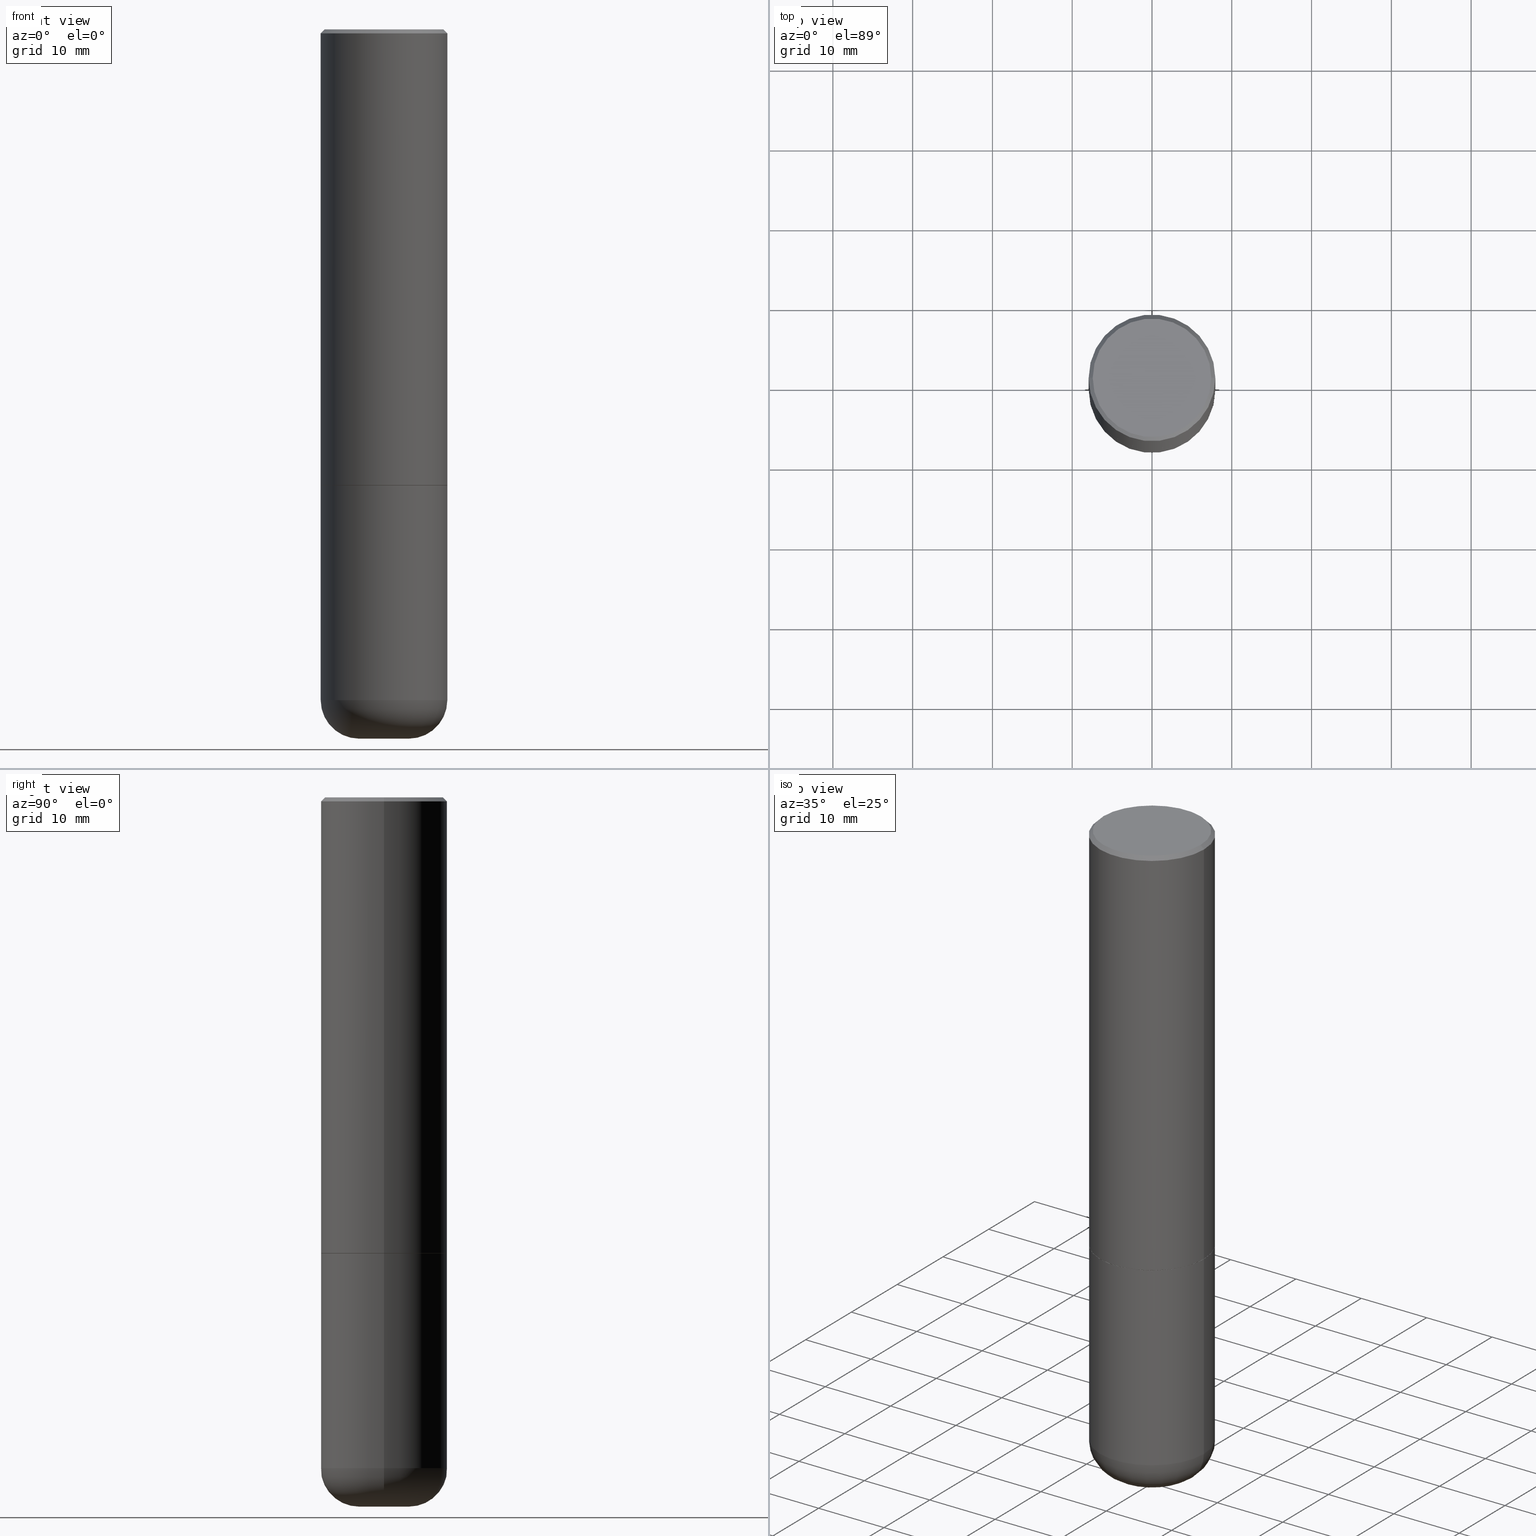
[diagram: canonical four-view strip — front | top / right | iso, engineering-drawing reading convention]
A machine part, canonical four-view strip (front | top / right | iso — engineering-drawing reading convention). The complete STEP part file that produces these views, byte-faithful:
ISO-10303-21;
HEADER;
FILE_DESCRIPTION (( 'STEP AP203' ),
    '1' );
FILE_NAME ('38553.STEP',
    '2024-03-03T04:38:35',
    ( '' ),
    ( '' ),
    'SwSTEP 2.0',
    'SolidWorks 2023',
    '' );
FILE_SCHEMA (( 'CONFIG_CONTROL_DESIGN' ));
ENDSEC;

DATA;
#1 = ADVANCED_FACE ( 'NONE', ( #108 ), #404, .T. ) ;
#2 = DIRECTION ( 'NONE',  ( -2.445468806185136877E-29, 3.491481338843145188E-15, 1.000000000000000000 ) ) ;
#3 = DIRECTION ( 'NONE',  ( 1.000000000000000000, -6.982962677686266711E-15, 4.878659607425508343E-29 ) ) ;
#4 = ORIENTED_EDGE ( 'NONE', *, *, #127, .F. ) ;
#5 = CIRCLE ( 'NONE', #359, 0.2924999999999997047 ) ;
#6 = CYLINDRICAL_SURFACE ( 'NONE', #142, 0.3125000000000000000 ) ;
#7 = ORIENTED_EDGE ( 'NONE', *, *, #146, .F. ) ;
#8 = APPROVAL_DATE_TIME ( #337, #165 ) ;
#9 = EDGE_LOOP ( 'NONE', ( #299, #68, #97, #269 ) ) ;
#10 = CARTESIAN_POINT ( 'NONE',  ( -0.1225000000000000255, -1.068638838026468806E-14, -3.310000000000000053 ) ) ;
#11 = ORIENTED_EDGE ( 'NONE', *, *, #335, .F. ) ;
#12 = PERSON_AND_ORGANIZATION ( #389, #206 ) ;
#13 = CC_DESIGN_DATE_AND_TIME_ASSIGNMENT ( #174, #399, ( #251 ) ) ;
#14 = ORIENTED_EDGE ( 'NONE', *, *, #303, .F. ) ;
#15 = ORIENTED_EDGE ( 'NONE', *, *, #239, .T. ) ;
#16 = CALENDAR_DATE ( 2024, 2, 3 ) ;
#17 = CARTESIAN_POINT ( 'NONE',  ( 8.559140821647976968E-29, -1.222018468595100934E-14, -3.500000000000000000 ) ) ;
#18 = CONICAL_SURFACE ( 'NONE', #414, 0.3124999999999998890, 0.7853981633974473908 ) ;
#19 = CARTESIAN_POINT ( 'NONE',  ( 0.2924999999999997047, -2.110215457714318353E-15, 1.323238871931272789E-16 ) ) ;
#20 = ADVANCED_FACE ( 'NONE', ( #51 ), #373, .T. ) ;
#21 = DIRECTION ( 'NONE',  ( 1.000000000000000000, -6.982962677686269077E-15, 4.883557194083114022E-29 ) ) ;
#22 = DIMENSIONAL_EXPONENTS ( 1.000000000000000000, 0.000000000000000000, 0.000000000000000000, 0.000000000000000000, 0.000000000000000000, 0.000000000000000000, 0.000000000000000000 ) ;
#23 = SHAPE_DEFINITION_REPRESENTATION ( #194, #264 ) ;
#24 = DIRECTION ( 'NONE',  ( 1.000000000000000000, -6.982962677686266711E-15, 0.000000000000000000 ) ) ;
#25 = CARTESIAN_POINT ( 'NONE',  ( 0.3124999999999998890, -2.213735251080466123E-15, -0.02000000000000006981 ) ) ;
#26 = AXIS2_PLACEMENT_3D ( 'NONE', #17, #371, #110 ) ;
#27 = PRODUCT_RELATED_PRODUCT_CATEGORY ( 'detail', '', ( #362 ) ) ;
#28 = CIRCLE ( 'NONE', #283, 0.3125000000000000000 ) ;
#29 = DIRECTION ( 'NONE',  ( -2.445468806185136597E-29, 3.491481338843145583E-15, 1.000000000000000000 ) ) ;
#30 = DIRECTION ( 'NONE',  ( 1.000000000000000000, -6.982962677686266711E-15, 4.876176775795936353E-29 ) ) ;
#31 = APPROVAL ( #341, 'UNSPECIFIED' ) ;
#32 = DIRECTION ( 'NONE',  ( 2.445468806185136597E-29, -3.491481338843145583E-15, -1.000000000000000000 ) ) ;
#33 = EDGE_LOOP ( 'NONE', ( #289, #229, #257, #340 ) ) ;
#34 = AXIS2_PLACEMENT_3D ( 'NONE', #352, #184, #124 ) ;
#35 = EDGE_CURVE ( 'NONE', #100, #272, #333, .T. ) ;
#36 = TOROIDAL_SURFACE ( 'NONE', #243, 0.1225000000000000255, 0.1899999999999999467 ) ;
#37 = APPROVAL_PERSON_ORGANIZATION ( #70, #165, #334 ) ;
#38 = LINE ( 'NONE', #228, #332 ) ;
#39 = CARTESIAN_POINT ( 'NONE',  ( 4.890937612370289799E-31, -6.982962677686315028E-17, -0.02000000000000006981 ) ) ;
#40 = CARTESIAN_POINT ( 'NONE',  ( 8.559140821647976968E-29, -1.222018468595100934E-14, -3.500000000000000000 ) ) ;
#41 = CONICAL_SURFACE ( 'NONE', #313, 0.3114999999999999991, 0.7853981633975165577 ) ;
#42 = CC_DESIGN_APPROVAL ( #165, ( #251 ) ) ;
#43 = CARTESIAN_POINT ( 'NONE',  ( 0.3125000000000000000, -2.182175836776958347E-15, 1.523805242436230075E-29 ) ) ;
#44 = PERSON_AND_ORGANIZATION ( #389, #206 ) ;
#45 = ORIENTED_EDGE ( 'NONE', *, *, #117, .T. ) ;
#46 = PERSON_AND_ORGANIZATION ( #389, #206 ) ;
#47 = ORIENTED_EDGE ( 'NONE', *, *, #62, .T. ) ;
#48 = VECTOR ( 'NONE', #215, 39.37007874015748143 ) ;
#49 = ORIENTED_EDGE ( 'NONE', *, *, #117, .F. ) ;
#50 = LINE ( 'NONE', #106, #394 ) ;
#51 = FACE_OUTER_BOUND ( 'NONE', #9, .T. ) ;
#52 = CARTESIAN_POINT ( 'NONE',  ( 0.1225000000000000255, -1.241221615958737947E-14, -3.310000000000000053 ) ) ;
#53 = DATE_TIME_ROLE ( 'classification_date' ) ;
#54 = DIRECTION ( 'NONE',  ( 1.000000000000000000, -6.982962677686266711E-15, 0.000000000000000000 ) ) ;
#55 = CARTESIAN_POINT ( 'NONE',  ( 0.3114999999999999991, -1.003102588649634920E-14, -2.249999999999999556 ) ) ;
#56 = DIRECTION ( 'NONE',  ( -2.445468806185136597E-29, 3.491481338843145583E-15, 1.000000000000000000 ) ) ;
#57 = ADVANCED_FACE ( 'NONE', ( #134 ), #266, .F. ) ;
#58 = LINE ( 'NONE', #345, #153 ) ;
#59 = CIRCLE ( 'NONE', #353, 0.3125000000000000000 ) ;
#60 = DIRECTION ( 'NONE',  ( -2.445468806185136597E-29, 3.491481338843145583E-15, 1.000000000000000000 ) ) ;
#61 = DIRECTION ( 'NONE',  ( 1.000000000000000000, -6.982962677686269077E-15, 0.000000000000000000 ) ) ;
#62 = EDGE_CURVE ( 'NONE', #393, #311, #346, .T. ) ;
#63 = ORIENTED_EDGE ( 'NONE', *, *, #73, .T. ) ;
#64 = DIRECTION ( 'NONE',  ( -1.000000000000000000, 6.982962677686266711E-15, 0.000000000000000000 ) ) ;
#65 = AXIS2_PLACEMENT_3D ( 'NONE', #118, #86, #415 ) ;
#66 = CARTESIAN_POINT ( 'NONE',  ( 5.502304813916556222E-29, -7.855833012397076871E-15, -2.249999999999999556 ) ) ;
#67 = DIRECTION ( 'NONE',  ( 1.000000000000000000, -6.982962677686265922E-15, 0.000000000000000000 ) ) ;
#68 = ORIENTED_EDGE ( 'NONE', *, *, #105, .T. ) ;
#69 = CC_DESIGN_APPROVAL ( #300, ( #314 ) ) ;
#70 = PERSON_AND_ORGANIZATION ( #389, #206 ) ;
#71 = VERTEX_POINT ( 'NONE', #19 ) ;
#72 = APPLICATION_PROTOCOL_DEFINITION ( 'international standard', 'config_control_design', 1994, #169 ) ;
#73 = EDGE_CURVE ( 'NONE', #261, #111, #58, .T. ) ;
#74 = VERTEX_POINT ( 'NONE', #25 ) ;
#75 = DIRECTION ( 'NONE',  ( 0.000000000000000000, 0.000000000000000000, 1.000000000000000000 ) ) ;
#76 = EDGE_LOOP ( 'NONE', ( #208, #79 ) ) ;
#77 = CIRCLE ( 'NONE', #204, 0.3124999999999998890 ) ;
#78 = LOCAL_TIME ( 23, 38, 35.00000000000000000, #412 ) ;
#79 = ORIENTED_EDGE ( 'NONE', *, *, #270, .T. ) ;
#80 = APPROVAL_ROLE ( '' ) ;
#81 = LINE ( 'NONE', #316, #407 ) ;
#82 = DIRECTION ( 'NONE',  ( 2.438088387897960049E-29, -3.491481338843145188E-15, -1.000000000000000000 ) ) ;
#83 = CALENDAR_DATE ( 2024, 2, 3 ) ;
#84 = CARTESIAN_POINT ( 'NONE',  ( 0.3125000000000002220, -1.003451736783519379E-14, -2.248999999999999666 ) ) ;
#85 = DATE_AND_TIME ( #210, #78 ) ;
#86 = DIRECTION ( 'NONE',  ( -2.445468806185136597E-29, 3.491481338843145583E-15, 1.000000000000000000 ) ) ;
#87 = DIRECTION ( 'NONE',  ( 1.000000000000000000, -6.982962677686266711E-15, 4.876176775795936353E-29 ) ) ;
#88 = CARTESIAN_POINT ( 'NONE',  ( 0.3114999999999999991, -1.003102588649634920E-14, -2.249999999999999556 ) ) ;
#89 = AXIS2_PLACEMENT_3D ( 'NONE', #327, #220, #288 ) ;
#90 = LOCAL_TIME ( 23, 38, 35.00000000000000000, #198 ) ;
#91 = ADVANCED_FACE ( 'NONE', ( #321 ), #181, .T. ) ;
#92 = DIRECTION ( 'NONE',  ( 1.000000000000000000, -6.982962677686266711E-15, 0.000000000000000000 ) ) ;
#93 = VERTEX_POINT ( 'NONE', #343 ) ;
#94 = CARTESIAN_POINT ( 'NONE',  ( 0.000000000000000000, 0.000000000000000000, 0.000000000000000000 ) ) ;
#95 = CARTESIAN_POINT ( 'NONE',  ( 5.502304813916556222E-29, -7.855833012397076871E-15, -2.249999999999999556 ) ) ;
#96 = AXIS2_PLACEMENT_3D ( 'NONE', #413, #29, #246 ) ;
#97 = ORIENTED_EDGE ( 'NONE', *, *, #281, .T. ) ;
#98 = CC_DESIGN_PERSON_AND_ORGANIZATION_ASSIGNMENT ( #397, #162, ( #381 ) ) ;
#99 = CARTESIAN_POINT ( 'NONE',  ( 8.094501748472800969E-29, -1.155680323157081116E-14, -3.310000000000000053 ) ) ;
#100 = VERTEX_POINT ( 'NONE', #150 ) ;
#101 = CARTESIAN_POINT ( 'NONE',  ( -0.3114999999999999991, -5.637193936156142396E-15, -2.249999999999999556 ) ) ;
#102 = ORIENTED_EDGE ( 'NONE', *, *, #405, .F. ) ;
#103 = AXIS2_PLACEMENT_3D ( 'NONE', #175, #141, #196 ) ;
#104 = AXIS2_PLACEMENT_3D ( 'NONE', #390, #185, #292 ) ;
#105 = EDGE_CURVE ( 'NONE', #402, #107, #214, .T. ) ;
#106 = CARTESIAN_POINT ( 'NONE',  ( -0.3125000000000000000, 2.220446049250313081E-15, -1.537167215704658232E-29 ) ) ;
#107 = VERTEX_POINT ( 'NONE', #84 ) ;
#108 = FACE_OUTER_BOUND ( 'NONE', #140, .T. ) ;
#109 = CALENDAR_DATE ( 2024, 2, 3 ) ;
#110 = DIRECTION ( 'NONE',  ( -1.000000000000000000, 6.982962677686265922E-15, -4.876176775795935793E-29 ) ) ;
#111 = VERTEX_POINT ( 'NONE', #379 ) ;
#112 = CARTESIAN_POINT ( 'NONE',  ( 4.890937612370289799E-31, -6.982962677686315028E-17, -0.02000000000000006981 ) ) ;
#113 = DIRECTION ( 'NONE',  ( -0.7071067811865469066, 2.468850131082249961E-15, -0.7071067811865482389 ) ) ;
#114 = EDGE_CURVE ( 'NONE', #393, #402, #286, .T. ) ;
#115 = VECTOR ( 'NONE', #164, 39.37007874015748143 ) ;
#116 = CIRCLE ( 'NONE', #160, 0.3125000000000002220 ) ;
#117 = EDGE_CURVE ( 'NONE', #128, #93, #282, .T. ) ;
#118 = CARTESIAN_POINT ( 'NONE',  ( 5.502304813916556222E-29, -7.855833012397076871E-15, -2.249999999999999556 ) ) ;
#119 = DIRECTION ( 'NONE',  ( 0.7071067811865957564, -2.468850131082761932E-15, 0.7071067811864992780 ) ) ;
#120 = LINE ( 'NONE', #55, #339 ) ;
#121 = CARTESIAN_POINT ( 'NONE',  ( 4.890937612370289799E-31, -6.982962677686315028E-17, -0.02000000000000006981 ) ) ;
#122 = EDGE_LOOP ( 'NONE', ( #7, #336, #63, #139 ) ) ;
#123 = DIRECTION ( 'NONE',  ( 2.445468806185136597E-29, -3.491481338843145583E-15, -1.000000000000000000 ) ) ;
#124 = DIRECTION ( 'NONE',  ( 1.000000000000000000, -6.982962677686269077E-15, 0.000000000000000000 ) ) ;
#125 = CC_DESIGN_PERSON_AND_ORGANIZATION_ASSIGNMENT ( #241, #365, ( #362 ) ) ;
#126 = DIRECTION ( 'NONE',  ( -2.438088387897960049E-29, 3.491481338843145188E-15, 1.000000000000000000 ) ) ;
#127 = EDGE_CURVE ( 'NONE', #311, #107, #120, .T. ) ;
#128 = VERTEX_POINT ( 'NONE', #376 ) ;
#129 = AXIS2_PLACEMENT_3D ( 'NONE', #52, #351, #250 ) ;
#130 = APPROVAL_PERSON_ORGANIZATION ( #167, #31, #310 ) ;
#131 = MANIFOLD_SOLID_BREP ( 'Body-Move/Copy2[1]', #233 ) ;
#132 = CARTESIAN_POINT ( 'NONE',  ( 0.000000000000000000, 0.000000000000000000, 0.000000000000000000 ) ) ;
#133 = DIRECTION ( 'NONE',  ( -1.000000000000000000, 7.105427357600998703E-15, 0.000000000000000000 ) ) ;
#134 = FACE_OUTER_BOUND ( 'NONE', #76, .T. ) ;
#135 = EDGE_CURVE ( 'NONE', #74, #111, #366, .T. ) ;
#136 = DIRECTION ( 'NONE',  ( 7.105427357601001859E-15, 1.000000000000000000, -3.491481338843145583E-15 ) ) ;
#137 = VERTEX_POINT ( 'NONE', #212 ) ;
#138 = CONICAL_SURFACE ( 'NONE', #104, 0.3114999999999999991, 0.7853981633975165577 ) ;
#139 = ORIENTED_EDGE ( 'NONE', *, *, #179, .T. ) ;
#140 = EDGE_LOOP ( 'NONE', ( #49, #14 ) ) ;
#141 = DIRECTION ( 'NONE',  ( -2.445468806185136597E-29, 3.491481338843145583E-15, 1.000000000000000000 ) ) ;
#142 = AXIS2_PLACEMENT_3D ( 'NONE', #132, #385, #30 ) ;
#143 = FACE_OUTER_BOUND ( 'NONE', #240, .T. ) ;
#144 = PERSON_AND_ORGANIZATION ( #389, #206 ) ;
#145 = DIRECTION ( 'NONE',  ( 1.000000000000000000, -6.982962677686269077E-15, 0.000000000000000000 ) ) ;
#146 = EDGE_CURVE ( 'NONE', #71, #74, #81, .T. ) ;
#147 = DIRECTION ( 'NONE',  ( -2.445468806185136597E-29, 3.491481338843145583E-15, 1.000000000000000000 ) ) ;
#148 = AXIS2_PLACEMENT_3D ( 'NONE', #95, #126, #222 ) ;
#149 = PLANE ( 'NONE',  #170 ) ;
#150 = CARTESIAN_POINT ( 'NONE',  ( 0.3125000000000000000, -1.373897906834776951E-14, -3.310000000000000053 ) ) ;
#151 = FACE_OUTER_BOUND ( 'NONE', #122, .T. ) ;
#152 = DIRECTION ( 'NONE',  ( -1.000000000000000000, 6.982962677686266711E-15, 0.000000000000000000 ) ) ;
#153 = VECTOR ( 'NONE', #113, 39.37007874015748143 ) ;
#154 = CONICAL_SURFACE ( 'NONE', #226, 0.3124999999999998890, 0.7853981633974473908 ) ;
#155 = DIRECTION ( 'NONE',  ( -2.445468806185136877E-29, 3.491481338843145188E-15, 1.000000000000000000 ) ) ;
#156 = PLANE ( 'NONE',  #148 ) ;
#157 = CARTESIAN_POINT ( 'NONE',  ( -3.235939384439181382E-45, 4.620063828179386567E-31, 1.323238871931127589E-16 ) ) ;
#158 = AXIS2_PLACEMENT_3D ( 'NONE', #400, #82, #216 ) ;
#159 = EDGE_LOOP ( 'NONE', ( #417, #274 ) ) ;
#160 = AXIS2_PLACEMENT_3D ( 'NONE', #186, #192, #92 ) ;
#161 = CC_DESIGN_APPROVAL ( #31, ( #381 ) ) ;
#162 = PERSON_AND_ORGANIZATION_ROLE ( 'creator' ) ;
#163 = EDGE_CURVE ( 'NONE', #128, #100, #276, .T. ) ;
#164 = DIRECTION ( 'NONE',  ( -2.445468806185136877E-29, 3.491481338843145188E-15, 1.000000000000000000 ) ) ;
#165 = APPROVAL ( #265, 'UNSPECIFIED' ) ;
#166 = ORIENTED_EDGE ( 'NONE', *, *, #361, .T. ) ;
#167 = PERSON_AND_ORGANIZATION ( #389, #206 ) ;
#168 = ORIENTED_EDGE ( 'NONE', *, *, #323, .F. ) ;
#169 = APPLICATION_CONTEXT ( 'configuration controlled 3d designs of mechanical parts and assemblies' ) ;
#170 = AXIS2_PLACEMENT_3D ( 'NONE', #176, #278, #285 ) ;
#171 = DIRECTION ( 'NONE',  ( 1.000000000000000000, 0.000000000000000000, 0.000000000000000000 ) ) ;
#172 = CC_DESIGN_PERSON_AND_ORGANIZATION_ASSIGNMENT ( #46, #207, ( #251 ) ) ;
#173 = EDGE_LOOP ( 'NONE', ( #242, #201, #368, #237 ) ) ;
#174 = DATE_AND_TIME ( #109, #90 ) ;
#175 = CARTESIAN_POINT ( 'NONE',  ( 0.000000000000000000, 0.000000000000000000, 0.000000000000000000 ) ) ;
#176 = CARTESIAN_POINT ( 'NONE',  ( 5.502304813916556222E-29, -7.855833012397076871E-15, -2.249999999999999556 ) ) ;
#177 = AXIS2_PLACEMENT_3D ( 'NONE', #40, #293, #354 ) ;
#178 = DIRECTION ( 'NONE',  ( 1.000000000000000000, -6.982962677686269077E-15, 0.000000000000000000 ) ) ;
#179 = EDGE_CURVE ( 'NONE', #111, #74, #77, .T. ) ;
#180 = CARTESIAN_POINT ( 'NONE',  ( 4.890937612370289799E-31, -6.982962677686315028E-17, -0.02000000000000006981 ) ) ;
#181 = CYLINDRICAL_SURFACE ( 'NONE', #213, 0.3125000000000000000 ) ;
#182 = VECTOR ( 'NONE', #155, 39.37007874015748143 ) ;
#183 = LOCAL_TIME ( 23, 38, 35.00000000000000000, #304 ) ;
#184 = DIRECTION ( 'NONE',  ( -2.445468806185136597E-29, 3.491481338843145583E-15, 1.000000000000000000 ) ) ;
#185 = DIRECTION ( 'NONE',  ( -2.445468806185136597E-29, 3.491481338843145583E-15, 1.000000000000000000 ) ) ;
#186 = CARTESIAN_POINT ( 'NONE',  ( 5.499859345110371740E-29, -7.852341531058233864E-15, -2.248999999999999666 ) ) ;
#187 = VERTEX_POINT ( 'NONE', #318 ) ;
#188 = AXIS2_PLACEMENT_3D ( 'NONE', #411, #248, #54 ) ;
#189 = DIRECTION ( 'NONE',  ( 1.000000000000000000, -6.982962677686265922E-15, 0.000000000000000000 ) ) ;
#190 = CIRCLE ( 'NONE', #177, 0.1225000000000000394 ) ;
#191 = ADVANCED_FACE ( 'NONE', ( #143 ), #149, .F. ) ;
#192 = DIRECTION ( 'NONE',  ( -2.445468806185136597E-29, 3.491481338843145583E-15, 1.000000000000000000 ) ) ;
#193 = CARTESIAN_POINT ( 'NONE',  ( 0.3125000000000000000, -2.182175836776958347E-15, 1.523805242436230075E-29 ) ) ;
#194 = PRODUCT_DEFINITION_SHAPE ( 'NONE', 'NONE',  #251 ) ;
#195 = CARTESIAN_POINT ( 'NONE',  ( 0.000000000000000000, 0.000000000000000000, 0.000000000000000000 ) ) ;
#196 = DIRECTION ( 'NONE',  ( 1.000000000000000000, -6.982962677686266711E-15, 4.876176775795936353E-29 ) ) ;
#197 = AXIS2_PLACEMENT_3D ( 'NONE', #219, #416, #3 ) ;
#198 = COORDINATED_UNIVERSAL_TIME_OFFSET ( 5, 0, .BEHIND. ) ;
#199 = ORIENTED_EDGE ( 'NONE', *, *, #114, .T. ) ;
#200 = CALENDAR_DATE ( 2024, 2, 3 ) ;
#201 = ORIENTED_EDGE ( 'NONE', *, *, #146, .T. ) ;
#202 = CARTESIAN_POINT ( 'NONE',  ( -0.3125000000000002220, -1.740639529667230767E-15, -2.248999999999999666 ) ) ;
#203 = EDGE_LOOP ( 'NONE', ( #308, #15, #342, #275 ) ) ;
#204 = AXIS2_PLACEMENT_3D ( 'NONE', #112, #56, #24 ) ;
#205 = EDGE_CURVE ( 'NONE', #272, #187, #28, .T. ) ;
#206 = ORGANIZATION ( 'UNSPECIFIED', 'UNSPECIFIED', '' ) ;
#207 = PERSON_AND_ORGANIZATION_ROLE ( 'creator' ) ;
#208 = ORIENTED_EDGE ( 'NONE', *, *, #350, .T. ) ;
#209 = CARTESIAN_POINT ( 'NONE',  ( 5.502304813916556222E-29, -7.855833012397076871E-15, -2.249999999999999556 ) ) ;
#210 = CALENDAR_DATE ( 2024, 2, 3 ) ;
#211 = ADVANCED_FACE ( 'NONE', ( #315 ), #36, .T. ) ;
#212 = CARTESIAN_POINT ( 'NONE',  ( -0.3125000000000000000, -9.336357182320498084E-15, -3.310000000000000053 ) ) ;
#213 = AXIS2_PLACEMENT_3D ( 'NONE', #382, #280, #87 ) ;
#214 = CIRCLE ( 'NONE', #188, 0.3125000000000002220 ) ;
#215 = DIRECTION ( 'NONE',  ( -0.7071067811865957564, 7.493145998870527710E-15, 0.7071067811864992780 ) ) ;
#216 = DIRECTION ( 'NONE',  ( -1.000000000000000000, 6.982962677686265922E-15, -4.876176775795935793E-29 ) ) ;
#217 = DIRECTION ( 'NONE',  ( -2.445468806185136597E-29, 3.491481338843145583E-15, 1.000000000000000000 ) ) ;
#218 = AXIS2_PLACEMENT_3D ( 'NONE', #94, #360, #256 ) ;
#219 = CARTESIAN_POINT ( 'NONE',  ( -3.235939384439181382E-45, 4.620063828179386567E-31, 1.323238871931127589E-16 ) ) ;
#220 = DIRECTION ( 'NONE',  ( -2.445468806185136597E-29, 3.491481338843145583E-15, 1.000000000000000000 ) ) ;
#221 = EDGE_LOOP ( 'NONE', ( #406, #398, #388, #396 ) ) ;
#222 = DIRECTION ( 'NONE',  ( 1.000000000000000000, -6.982962677686265922E-15, 4.876176775795935793E-29 ) ) ;
#223 = EDGE_CURVE ( 'NONE', #187, #272, #305, .T. ) ;
#224 = CLOSED_SHELL ( 'NONE', ( #284, #258, #245, #392, #20, #317, #290, #57 ) ) ;
#225 = CYLINDRICAL_SURFACE ( 'NONE', #218, 0.3125000000000000000 ) ;
#226 = AXIS2_PLACEMENT_3D ( 'NONE', #39, #123, #64 ) ;
#227 = ORIENTED_EDGE ( 'NONE', *, *, #239, .F. ) ;
#228 = CARTESIAN_POINT ( 'NONE',  ( -0.3125000000000000000, 2.220446049250313081E-15, -1.537167215704658232E-29 ) ) ;
#229 = ORIENTED_EDGE ( 'NONE', *, *, #410, .T. ) ;
#230 = DATE_AND_TIME ( #16, #183 ) ;
#231 = ORIENTED_EDGE ( 'NONE', *, *, #405, .T. ) ;
#232 = APPLICATION_CONTEXT ( 'configuration controlled 3d designs of mechanical parts and assemblies' ) ;
#233 = CLOSED_SHELL ( 'NONE', ( #378, #355, #191, #91, #211, #1 ) ) ;
#234 = ORIENTED_EDGE ( 'NONE', *, *, #105, .F. ) ;
#235 =( GEOMETRIC_REPRESENTATION_CONTEXT ( 3 ) GLOBAL_UNCERTAINTY_ASSIGNED_CONTEXT ( ( #386 ) ) GLOBAL_UNIT_ASSIGNED_CONTEXT ( ( #273, #238, #370 ) ) REPRESENTATION_CONTEXT ( 'NONE', 'WORKASPACE' ) );
#236 = LOCAL_TIME ( 23, 38, 35.00000000000000000, #247 ) ;
#237 = ORIENTED_EDGE ( 'NONE', *, *, #73, .F. ) ;
#238 =( NAMED_UNIT ( * ) PLANE_ANGLE_UNIT ( ) SI_UNIT ( $, .RADIAN. ) );
#239 = EDGE_CURVE ( 'NONE', #137, #100, #347, .T. ) ;
#240 = EDGE_LOOP ( 'NONE', ( #369, #244 ) ) ;
#241 = PERSON_AND_ORGANIZATION ( #389, #206 ) ;
#242 = ORIENTED_EDGE ( 'NONE', *, *, #270, .F. ) ;
#243 = AXIS2_PLACEMENT_3D ( 'NONE', #384, #409, #21 ) ;
#244 = ORIENTED_EDGE ( 'NONE', *, *, #223, .T. ) ;
#245 = ADVANCED_FACE ( 'NONE', ( #395 ), #154, .T. ) ;
#246 = DIRECTION ( 'NONE',  ( 1.000000000000000000, -6.982962677686263555E-15, 0.000000000000000000 ) ) ;
#247 = COORDINATED_UNIVERSAL_TIME_OFFSET ( 5, 0, .BEHIND. ) ;
#248 = DIRECTION ( 'NONE',  ( -2.445468806185136597E-29, 3.491481338843145583E-15, 1.000000000000000000 ) ) ;
#249 = CIRCLE ( 'NONE', #255, 0.1899999999999999745 ) ;
#250 = DIRECTION ( 'NONE',  ( 1.000000000000000000, -6.982962677686261977E-15, 0.000000000000000000 ) ) ;
#251 = PRODUCT_DEFINITION ( 'UNKNOWN', '', #381, #309 ) ;
#252 = APPROVAL_STATUS ( 'not_yet_approved' ) ;
#253 = CARTESIAN_POINT ( 'NONE',  ( 5.502304813916556222E-29, -7.855833012397076871E-15, -2.249999999999999556 ) ) ;
#254 = DIRECTION ( 'NONE',  ( -2.445468806185136597E-29, 3.491481338843145583E-15, 1.000000000000000000 ) ) ;
#255 = AXIS2_PLACEMENT_3D ( 'NONE', #10, #136, #133 ) ;
#256 = DIRECTION ( 'NONE',  ( 1.000000000000000000, -6.982962677686266711E-15, 4.876176775795936353E-29 ) ) ;
#257 = ORIENTED_EDGE ( 'NONE', *, *, #135, .F. ) ;
#258 = ADVANCED_FACE ( 'NONE', ( #328 ), #225, .T. ) ;
#259 = DIRECTION ( 'NONE',  ( -2.445468806185136597E-29, 3.491481338843145583E-15, 1.000000000000000000 ) ) ;
#260 = CARTESIAN_POINT ( 'NONE',  ( -0.2924999999999997047, 2.077431396611663005E-15, 1.323238871930983375E-16 ) ) ;
#261 = VERTEX_POINT ( 'NONE', #260 ) ;
#262 = CC_DESIGN_DATE_AND_TIME_ASSIGNMENT ( #85, #53, ( #314 ) ) ;
#263 = APPROVAL_DATE_TIME ( #230, #31 ) ;
#264 = ADVANCED_BREP_SHAPE_REPRESENTATION ( '38553', ( #131, #287, #291 ), #235 ) ;
#265 = APPROVAL_STATUS ( 'not_yet_approved' ) ;
#266 = PLANE ( 'NONE',  #158 ) ;
#267 = DIRECTION ( 'NONE',  ( -2.445468806185136877E-29, 3.491481338843145188E-15, 1.000000000000000000 ) ) ;
#268 = TOROIDAL_SURFACE ( 'NONE', #89, 0.1225000000000000255, 0.1899999999999999467 ) ;
#269 = ORIENTED_EDGE ( 'NONE', *, *, #179, .F. ) ;
#270 = EDGE_CURVE ( 'NONE', #71, #261, #319, .T. ) ;
#271 = MECHANICAL_CONTEXT ( 'NONE', #232, 'mechanical' ) ;
#272 = VERTEX_POINT ( 'NONE', #391 ) ;
#273 =( CONVERSION_BASED_UNIT ( 'INCH', #372 ) LENGTH_UNIT ( ) NAMED_UNIT ( #22 ) );
#274 = ORIENTED_EDGE ( 'NONE', *, *, #62, .F. ) ;
#275 = ORIENTED_EDGE ( 'NONE', *, *, #223, .F. ) ;
#276 = CIRCLE ( 'NONE', #129, 0.1899999999999999745 ) ;
#277 = APPROVAL_DATE_TIME ( #383, #300 ) ;
#278 = DIRECTION ( 'NONE',  ( 2.438088387897960049E-29, -3.491481338843145188E-15, -1.000000000000000000 ) ) ;
#279 = DIRECTION ( 'NONE',  ( 0.7071067811865469066, -7.319954787623254468E-15, -0.7071067811865482389 ) ) ;
#280 = DIRECTION ( 'NONE',  ( -2.445468806185136597E-29, 3.491481338843145583E-15, 1.000000000000000000 ) ) ;
#281 = EDGE_CURVE ( 'NONE', #107, #74, #387, .T. ) ;
#282 = CIRCLE ( 'NONE', #96, 0.1225000000000000394 ) ;
#283 = AXIS2_PLACEMENT_3D ( 'NONE', #209, #147, #178 ) ;
#284 = ADVANCED_FACE ( 'NONE', ( #322 ), #138, .T. ) ;
#285 = DIRECTION ( 'NONE',  ( -1.000000000000000000, 6.982962677686265922E-15, -4.876176775795935793E-29 ) ) ;
#286 = LINE ( 'NONE', #349, #48 ) ;
#287 = MANIFOLD_SOLID_BREP ( 'Body-Move/Copy2[2]', #224 ) ;
#288 = DIRECTION ( 'NONE',  ( 1.000000000000000000, -6.982962677686269077E-15, 4.883557194083114022E-29 ) ) ;
#289 = ORIENTED_EDGE ( 'NONE', *, *, #323, .T. ) ;
#290 = ADVANCED_FACE ( 'NONE', ( #295 ), #156, .F. ) ;
#291 = AXIS2_PLACEMENT_3D ( 'NONE', #195, #75, #171 ) ;
#292 = DIRECTION ( 'NONE',  ( 1.000000000000000000, -6.982962677686265922E-15, 0.000000000000000000 ) ) ;
#293 = DIRECTION ( 'NONE',  ( -2.445468806185136597E-29, 3.491481338843145583E-15, 1.000000000000000000 ) ) ;
#294 = DIRECTION ( 'NONE',  ( 1.000000000000000000, -6.982962677686266711E-15, 4.878659607425508343E-29 ) ) ;
#295 = FACE_OUTER_BOUND ( 'NONE', #159, .T. ) ;
#296 = CIRCLE ( 'NONE', #380, 0.3114999999999999991 ) ;
#297 = ORIENTED_EDGE ( 'NONE', *, *, #163, .T. ) ;
#298 = APPLICATION_PROTOCOL_DEFINITION ( 'international standard', 'config_control_design', 1994, #232 ) ;
#299 = ORIENTED_EDGE ( 'NONE', *, *, #410, .F. ) ;
#300 = APPROVAL ( #252, 'UNSPECIFIED' ) ;
#301 =( LENGTH_UNIT ( ) NAMED_UNIT ( * ) SI_UNIT ( $, .METRE. ) );
#302 = EDGE_LOOP ( 'NONE', ( #45, #231, #11, #324 ) ) ;
#303 = EDGE_CURVE ( 'NONE', #93, #128, #190, .T. ) ;
#304 = COORDINATED_UNIVERSAL_TIME_OFFSET ( 5, 0, .BEHIND. ) ;
#305 = CIRCLE ( 'NONE', #401, 0.3125000000000000000 ) ;
#306 = EDGE_LOOP ( 'NONE', ( #408, #47, #364, #234 ) ) ;
#307 = COORDINATED_UNIVERSAL_TIME_OFFSET ( 5, 0, .BEHIND. ) ;
#308 = ORIENTED_EDGE ( 'NONE', *, *, #358, .F. ) ;
#309 = DESIGN_CONTEXT ( 'detailed design', #169, 'design' ) ;
#310 = APPROVAL_ROLE ( '' ) ;
#311 = VERTEX_POINT ( 'NONE', #88 ) ;
#312 = DIRECTION ( 'NONE',  ( 1.000000000000000000, -6.982962677686266711E-15, 0.000000000000000000 ) ) ;
#313 = AXIS2_PLACEMENT_3D ( 'NONE', #66, #357, #189 ) ;
#314 = SECURITY_CLASSIFICATION ( '', '', #403 ) ;
#315 = FACE_OUTER_BOUND ( 'NONE', #338, .T. ) ;
#316 = CARTESIAN_POINT ( 'NONE',  ( 0.3124999999999998890, -2.213735251080466123E-15, -0.02000000000000006981 ) ) ;
#317 = ADVANCED_FACE ( 'NONE', ( #356 ), #41, .T. ) ;
#318 = CARTESIAN_POINT ( 'NONE',  ( -0.3125000000000000000, -7.485872072733631726E-15, -2.249999999999999556 ) ) ;
#319 = CIRCLE ( 'NONE', #197, 0.2924999999999997047 ) ;
#320 = APPROVAL_PERSON_ORGANIZATION ( #144, #300, #80 ) ;
#321 = FACE_OUTER_BOUND ( 'NONE', #203, .T. ) ;
#322 = FACE_OUTER_BOUND ( 'NONE', #330, .T. ) ;
#323 = EDGE_CURVE ( 'NONE', #107, #402, #116, .T. ) ;
#324 = ORIENTED_EDGE ( 'NONE', *, *, #163, .F. ) ;
#325 = DIRECTION ( 'NONE',  ( -2.445468806185136597E-29, 3.491481338843145583E-15, 1.000000000000000000 ) ) ;
#326 = AXIS2_PLACEMENT_3D ( 'NONE', #180, #254, #312 ) ;
#327 = CARTESIAN_POINT ( 'NONE',  ( 8.094501748472800969E-29, -1.155680323157081116E-14, -3.310000000000000053 ) ) ;
#328 = FACE_OUTER_BOUND ( 'NONE', #33, .T. ) ;
#329 = FACE_OUTER_BOUND ( 'NONE', #221, .T. ) ;
#330 = EDGE_LOOP ( 'NONE', ( #166, #199, #168, #4 ) ) ;
#331 = PERSON_AND_ORGANIZATION_ROLE ( 'design_supplier' ) ;
#332 = VECTOR ( 'NONE', #2, 39.37007874015748143 ) ;
#333 = LINE ( 'NONE', #43, #115 ) ;
#334 = APPROVAL_ROLE ( '' ) ;
#335 = EDGE_CURVE ( 'NONE', #100, #137, #59, .T. ) ;
#336 = ORIENTED_EDGE ( 'NONE', *, *, #350, .F. ) ;
#337 = DATE_AND_TIME ( #200, #374 ) ;
#338 = EDGE_LOOP ( 'NONE', ( #102, #375, #297, #227 ) ) ;
#339 = VECTOR ( 'NONE', #119, 39.37007874015748143 ) ;
#340 = ORIENTED_EDGE ( 'NONE', *, *, #281, .F. ) ;
#341 = APPROVAL_STATUS ( 'not_yet_approved' ) ;
#342 = ORIENTED_EDGE ( 'NONE', *, *, #35, .T. ) ;
#343 = CARTESIAN_POINT ( 'NONE',  ( -0.1225000000000000394, -1.034306350848269295E-14, -3.500000000000000000 ) ) ;
#344 = PERSON_AND_ORGANIZATION_ROLE ( 'classification_officer' ) ;
#345 = CARTESIAN_POINT ( 'NONE',  ( -0.3124999999999998890, 2.112346210000094260E-15, -0.02000000000000006981 ) ) ;
#346 = CIRCLE ( 'NONE', #65, 0.3114999999999999991 ) ;
#347 = CIRCLE ( 'NONE', #34, 0.3125000000000000000 ) ;
#348 = CC_DESIGN_PERSON_AND_ORGANIZATION_ASSIGNMENT ( #44, #344, ( #314 ) ) ;
#349 = CARTESIAN_POINT ( 'NONE',  ( -0.3114999999999999991, -5.642492390504364798E-15, -2.249999999999999556 ) ) ;
#350 = EDGE_CURVE ( 'NONE', #261, #71, #5, .T. ) ;
#351 = DIRECTION ( 'NONE',  ( -6.982962677686266711E-15, -1.000000000000000000, 3.491481338843145583E-15 ) ) ;
#352 = CARTESIAN_POINT ( 'NONE',  ( 8.094501748472800969E-29, -1.155680323157081116E-14, -3.310000000000000053 ) ) ;
#353 = AXIS2_PLACEMENT_3D ( 'NONE', #99, #60, #61 ) ;
#354 = DIRECTION ( 'NONE',  ( 1.000000000000000000, -6.982962677686263555E-15, 0.000000000000000000 ) ) ;
#355 = ADVANCED_FACE ( 'NONE', ( #418 ), #268, .T. ) ;
#356 = FACE_OUTER_BOUND ( 'NONE', #306, .T. ) ;
#357 = DIRECTION ( 'NONE',  ( -2.445468806185136597E-29, 3.491481338843145583E-15, 1.000000000000000000 ) ) ;
#358 = EDGE_CURVE ( 'NONE', #137, #187, #38, .T. ) ;
#359 = AXIS2_PLACEMENT_3D ( 'NONE', #157, #259, #294 ) ;
#360 = DIRECTION ( 'NONE',  ( -2.445468806185136597E-29, 3.491481338843145583E-15, 1.000000000000000000 ) ) ;
#361 = EDGE_CURVE ( 'NONE', #311, #393, #296, .T. ) ;
#362 = PRODUCT ( '38553', '38553', '', ( #271 ) ) ;
#363 = CARTESIAN_POINT ( 'NONE',  ( 5.502304813916556222E-29, -7.855833012397076871E-15, -2.249999999999999556 ) ) ;
#364 = ORIENTED_EDGE ( 'NONE', *, *, #127, .T. ) ;
#365 = PERSON_AND_ORGANIZATION_ROLE ( 'design_owner' ) ;
#366 = CIRCLE ( 'NONE', #326, 0.3124999999999998890 ) ;
#367 = CC_DESIGN_SECURITY_CLASSIFICATION ( #314, ( #381 ) ) ;
#368 = ORIENTED_EDGE ( 'NONE', *, *, #135, .T. ) ;
#369 = ORIENTED_EDGE ( 'NONE', *, *, #205, .T. ) ;
#370 =( NAMED_UNIT ( * ) SI_UNIT ( $, .STERADIAN. ) SOLID_ANGLE_UNIT ( ) );
#371 = DIRECTION ( 'NONE',  ( 2.438088387897960049E-29, -3.491481338843145188E-15, -1.000000000000000000 ) ) ;
#372 = LENGTH_MEASURE_WITH_UNIT ( LENGTH_MEASURE( 0.02539999999999999897 ), #301 );
#373 = CYLINDRICAL_SURFACE ( 'NONE', #103, 0.3125000000000000000 ) ;
#374 = LOCAL_TIME ( 23, 38, 35.00000000000000000, #307 ) ;
#375 = ORIENTED_EDGE ( 'NONE', *, *, #303, .T. ) ;
#376 = CARTESIAN_POINT ( 'NONE',  ( 0.1225000000000000394, -1.307559761396757607E-14, -3.500000000000000000 ) ) ;
#377 = CC_DESIGN_PERSON_AND_ORGANIZATION_ASSIGNMENT ( #12, #331, ( #381 ) ) ;
#378 = ADVANCED_FACE ( 'NONE', ( #329 ), #6, .T. ) ;
#379 = CARTESIAN_POINT ( 'NONE',  ( -0.3124999999999998890, 2.112346210000094260E-15, -0.02000000000000006981 ) ) ;
#380 = AXIS2_PLACEMENT_3D ( 'NONE', #363, #325, #67 ) ;
#381 = PRODUCT_DEFINITION_FORMATION_WITH_SPECIFIED_SOURCE ( 'ANY', '', #362, .NOT_KNOWN. ) ;
#382 = CARTESIAN_POINT ( 'NONE',  ( 0.000000000000000000, 0.000000000000000000, 0.000000000000000000 ) ) ;
#383 = DATE_AND_TIME ( #83, #236 ) ;
#384 = CARTESIAN_POINT ( 'NONE',  ( 8.094501748472800969E-29, -1.155680323157081116E-14, -3.310000000000000053 ) ) ;
#385 = DIRECTION ( 'NONE',  ( -2.445468806185136597E-29, 3.491481338843145583E-15, 1.000000000000000000 ) ) ;
#386 = UNCERTAINTY_MEASURE_WITH_UNIT (LENGTH_MEASURE( 1.000000000000000082E-05 ), #273, 'distance_accuracy_value', 'NONE');
#387 = LINE ( 'NONE', #193, #182 ) ;
#388 = ORIENTED_EDGE ( 'NONE', *, *, #205, .F. ) ;
#389 = PERSON ( 'UNSPECIFIED', 'UNSPECIFIED', 'UNSPECIFIED', ('UNSPECIFIED'), ('UNSPECIFIED'), ('UNSPECIFIED') ) ;
#390 = CARTESIAN_POINT ( 'NONE',  ( 5.502304813916556222E-29, -7.855833012397076871E-15, -2.249999999999999556 ) ) ;
#391 = CARTESIAN_POINT ( 'NONE',  ( 0.3125000000000000000, -1.003800884917403522E-14, -2.249999999999999556 ) ) ;
#392 = ADVANCED_FACE ( 'NONE', ( #151 ), #18, .T. ) ;
#393 = VERTEX_POINT ( 'NONE', #101 ) ;
#394 = VECTOR ( 'NONE', #267, 39.37007874015748143 ) ;
#395 = FACE_OUTER_BOUND ( 'NONE', #173, .T. ) ;
#396 = ORIENTED_EDGE ( 'NONE', *, *, #35, .F. ) ;
#397 = PERSON_AND_ORGANIZATION ( #389, #206 ) ;
#398 = ORIENTED_EDGE ( 'NONE', *, *, #358, .T. ) ;
#399 = DATE_TIME_ROLE ( 'creation_date' ) ;
#400 = CARTESIAN_POINT ( 'NONE',  ( 2.042516583223230567E-15, 0.2924999999999997047, -9.550963480150628116E-16 ) ) ;
#401 = AXIS2_PLACEMENT_3D ( 'NONE', #253, #217, #145 ) ;
#402 = VERTEX_POINT ( 'NONE', #202 ) ;
#403 = SECURITY_CLASSIFICATION_LEVEL ( 'unclassified' ) ;
#404 = PLANE ( 'NONE',  #26 ) ;
#405 = EDGE_CURVE ( 'NONE', #93, #137, #249, .T. ) ;
#406 = ORIENTED_EDGE ( 'NONE', *, *, #335, .T. ) ;
#407 = VECTOR ( 'NONE', #279, 39.37007874015748143 ) ;
#408 = ORIENTED_EDGE ( 'NONE', *, *, #114, .F. ) ;
#409 = DIRECTION ( 'NONE',  ( -2.445468806185136597E-29, 3.491481338843145583E-15, 1.000000000000000000 ) ) ;
#410 = EDGE_CURVE ( 'NONE', #402, #111, #50, .T. ) ;
#411 = CARTESIAN_POINT ( 'NONE',  ( 5.499859345110371740E-29, -7.852341531058233864E-15, -2.248999999999999666 ) ) ;
#412 = COORDINATED_UNIVERSAL_TIME_OFFSET ( 5, 0, .BEHIND. ) ;
#413 = CARTESIAN_POINT ( 'NONE',  ( 8.559140821647976968E-29, -1.222018468595100934E-14, -3.500000000000000000 ) ) ;
#414 = AXIS2_PLACEMENT_3D ( 'NONE', #121, #32, #152 ) ;
#415 = DIRECTION ( 'NONE',  ( 1.000000000000000000, -6.982962677686265922E-15, 0.000000000000000000 ) ) ;
#416 = DIRECTION ( 'NONE',  ( -2.445468806185136597E-29, 3.491481338843145583E-15, 1.000000000000000000 ) ) ;
#417 = ORIENTED_EDGE ( 'NONE', *, *, #361, .F. ) ;
#418 = FACE_OUTER_BOUND ( 'NONE', #302, .T. ) ;
ENDSEC;
END-ISO-10303-21;
